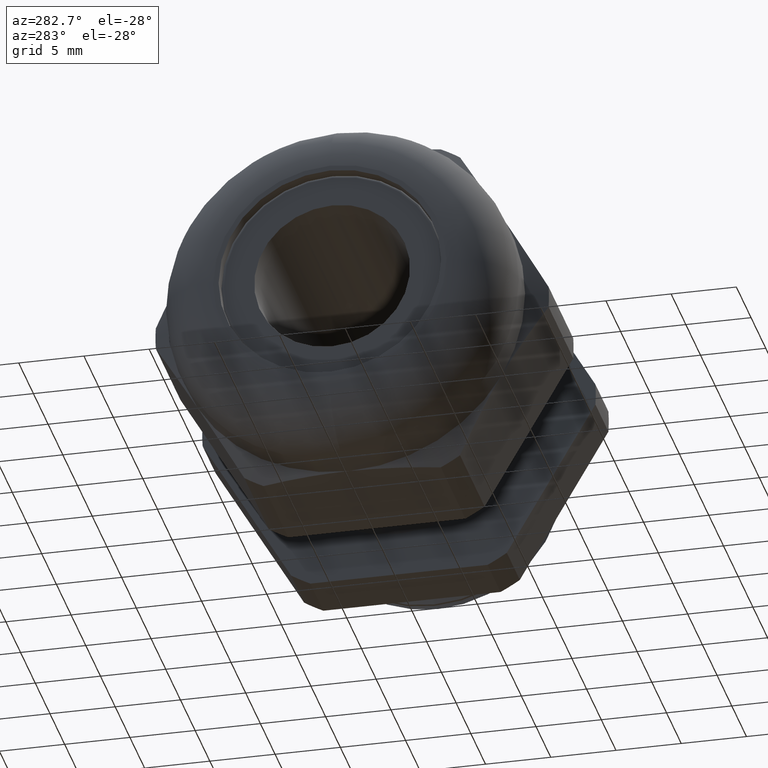
[diagram: clean part render]
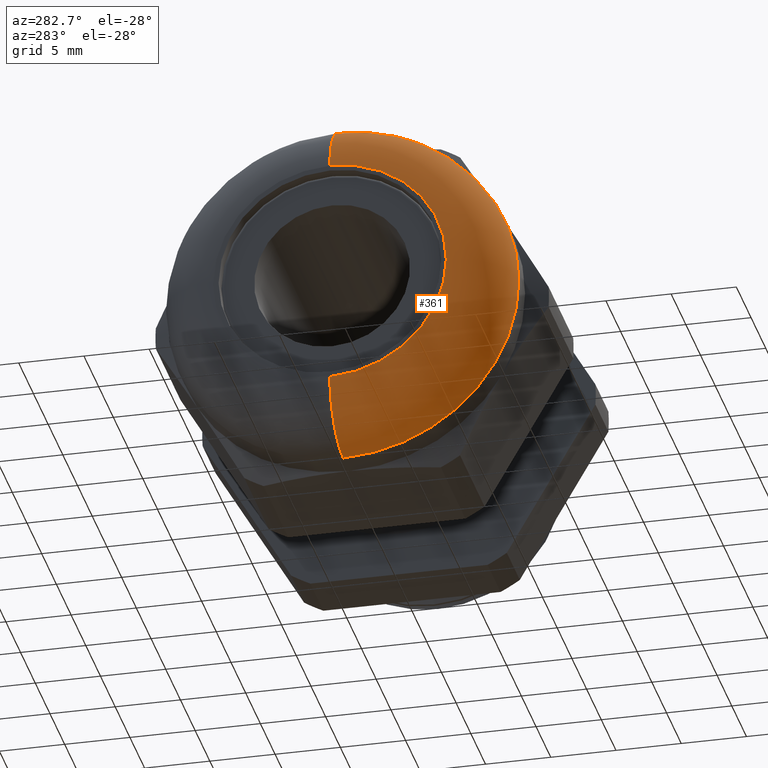
[diagram: same view with one face highlighted and labeled with its STEP entity id]
A machine part, auxiliary view. The second image highlights one B-rep face of the part: STEP entity #361.
In plain terms, the highlighted toroidal blend (fillet) surface has major radius 8.9256 mm and minor (blend) radius 4.5364 mm.
Its self-contained STEP definition (entity closure, byte-faithful):
#22 = EDGE_LOOP ( 'NONE', ( #732, #733, #734, #662 ) ) ;
#361 = ADVANCED_FACE ( 'NONE', ( #1619 ), #1618, .T. ) ;
#363 = EDGE_CURVE ( 'NONE', #470, #388, #1614, .T. ) ;
#388 = VERTEX_POINT ( 'NONE', #1647 ) ;
#390 = EDGE_CURVE ( 'NONE', #494, #388, #1645, .T. ) ;
#463 = EDGE_CURVE ( 'NONE', #494, #571, #1776, .T. ) ;
#470 = VERTEX_POINT ( 'NONE', #1823 ) ;
#494 = VERTEX_POINT ( 'NONE', #1849 ) ;
#547 = EDGE_CURVE ( 'NONE', #571, #470, #1943, .T. ) ;
#571 = VERTEX_POINT ( 'NONE', #1955 ) ;
#662 = ORIENTED_EDGE ( 'NONE', *, *, #363, .F. ) ;
#732 = ORIENTED_EDGE ( 'NONE', *, *, #547, .F. ) ;
#733 = ORIENTED_EDGE ( 'NONE', *, *, #463, .F. ) ;
#734 = ORIENTED_EDGE ( 'NONE', *, *, #390, .T. ) ;
#1610 = DIRECTION ( 'NONE',  ( 0.0000000000000000000, 0.0000000000000000000, -1.000000000000000000 ) ) ;
#1611 = DIRECTION ( 'NONE',  ( 1.000000000000000000, 0.0000000000000000000, 0.0000000000000000000 ) ) ;
#1612 = CARTESIAN_POINT ( 'NONE',  ( -0.9214000000000000000, 0.0000000000000000000, 0.0000000000000000000 ) ) ;
#1613 = AXIS2_PLACEMENT_3D ( 'NONE', #1612, #1611, #1610 ) ;
#1614 = CIRCLE ( 'NONE', #1613, 0.5299999999999996900 ) ;
#1615 = DIRECTION ( 'NONE',  ( 0.0000000000000000000, 0.0000000000000000000, -1.000000000000000000 ) ) ;
#1616 = DIRECTION ( 'NONE',  ( 1.000000000000000000, 0.0000000000000000000, 0.0000000000000000000 ) ) ;
#1617 = AXIS2_PLACEMENT_3D ( 'NONE', #1624, #1616, #1615 ) ;
#1618 = TOROIDAL_SURFACE ( 'NONE', #1617, 0.3513999999999995500, 0.1786000000000001200 ) ;
#1619 = FACE_OUTER_BOUND ( 'NONE', #22, .T. ) ;
#1624 = CARTESIAN_POINT ( 'NONE',  ( -0.9214000000000000000, 0.0000000000000000000, 0.0000000000000000000 ) ) ;
#1641 = DIRECTION ( 'NONE',  ( 0.0000000000000000000, 0.0000000000000000000, -1.000000000000000000 ) ) ;
#1642 = DIRECTION ( 'NONE',  ( 0.0000000000000000000, -1.000000000000000000, 0.0000000000000000000 ) ) ;
#1643 = CARTESIAN_POINT ( 'NONE',  ( -0.9214000000000000000, 0.0000000000000000000, -0.3513999999999995500 ) ) ;
#1644 = AXIS2_PLACEMENT_3D ( 'NONE', #1643, #1642, #1641 ) ;
#1645 = CIRCLE ( 'NONE', #1644, 0.1786000000000001200 ) ;
#1647 = CARTESIAN_POINT ( 'NONE',  ( -0.9214000000000000000, 6.490628035480968700E-017, -0.5299999999999996900 ) ) ;
#1772 = DIRECTION ( 'NONE',  ( 0.0000000000000000000, 0.0000000000000000000, -1.000000000000000000 ) ) ;
#1773 = DIRECTION ( 'NONE',  ( -1.000000000000000000, 0.0000000000000000000, 0.0000000000000000000 ) ) ;
#1774 = CARTESIAN_POINT ( 'NONE',  ( -1.100000000000000100, 0.0000000000000000000, 0.0000000000000000000 ) ) ;
#1775 = AXIS2_PLACEMENT_3D ( 'NONE', #1774, #1773, #1772 ) ;
#1776 = CIRCLE ( 'NONE', #1775, 0.3513999999999995500 ) ;
#1823 = CARTESIAN_POINT ( 'NONE',  ( -0.9214000000000000000, 0.0000000000000000000, 0.5299999999999996900 ) ) ;
#1849 = CARTESIAN_POINT ( 'NONE',  ( -1.100000000000000100, 0.0000000000000000000, -0.3513999999999995500 ) ) ;
#1939 = DIRECTION ( 'NONE',  ( 0.0000000000000000000, 1.224646799147353000E-016, 1.000000000000000000 ) ) ;
#1940 = DIRECTION ( 'NONE',  ( 0.0000000000000000000, 1.000000000000000000, -1.224646799147353200E-016 ) ) ;
#1941 = CARTESIAN_POINT ( 'NONE',  ( -0.9214000000000000000, 4.303408852203793700E-017, 0.3513999999999995500 ) ) ;
#1942 = AXIS2_PLACEMENT_3D ( 'NONE', #1941, #1940, #1939 ) ;
#1943 = CIRCLE ( 'NONE', #1942, 0.1786000000000001200 ) ;
#1955 = CARTESIAN_POINT ( 'NONE',  ( -1.100000000000000100, 5.397018443842380300E-017, 0.3513999999999995500 ) ) ;